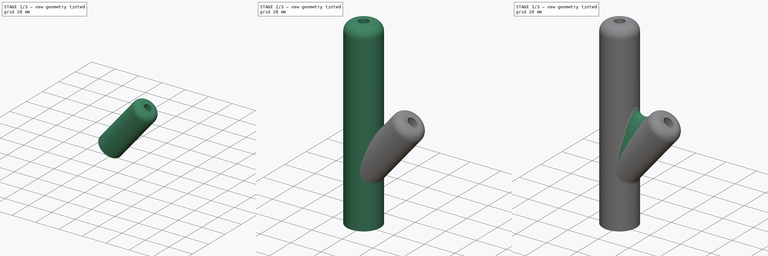
[diagram: build sequence overview — one tinted view per stage of 3, left to right]
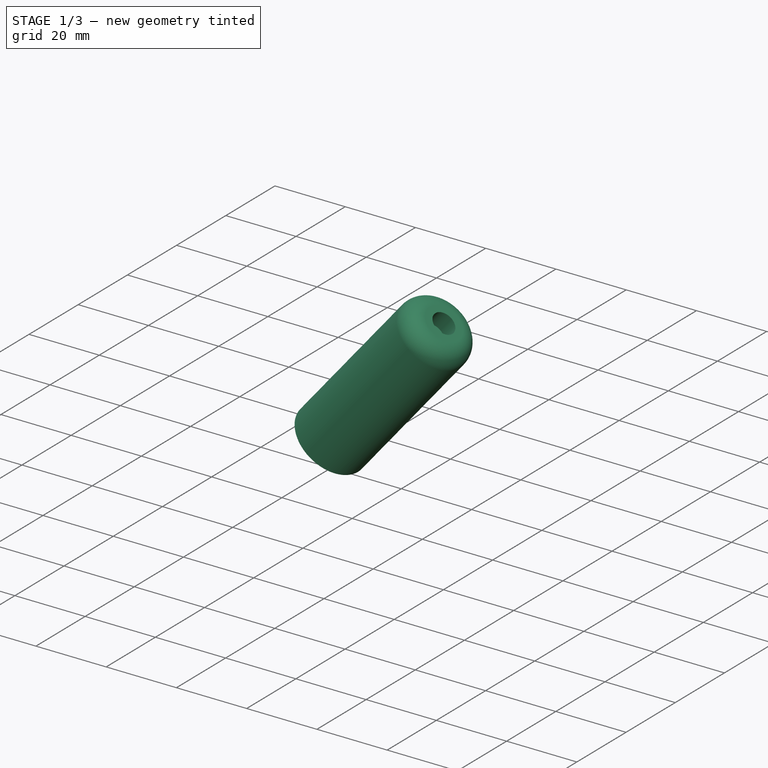
[diagram: stage 1 of 3 — iso view after this stage's code; geometry added in this stage tinted green]
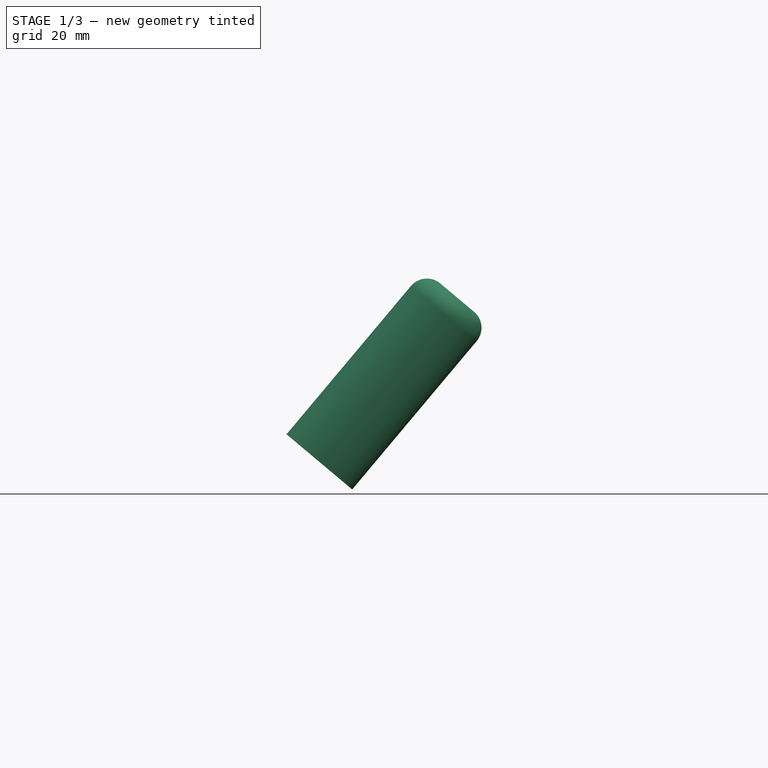
[diagram: stage 1 of 3 — front view after this stage's code; geometry added in this stage tinted green]
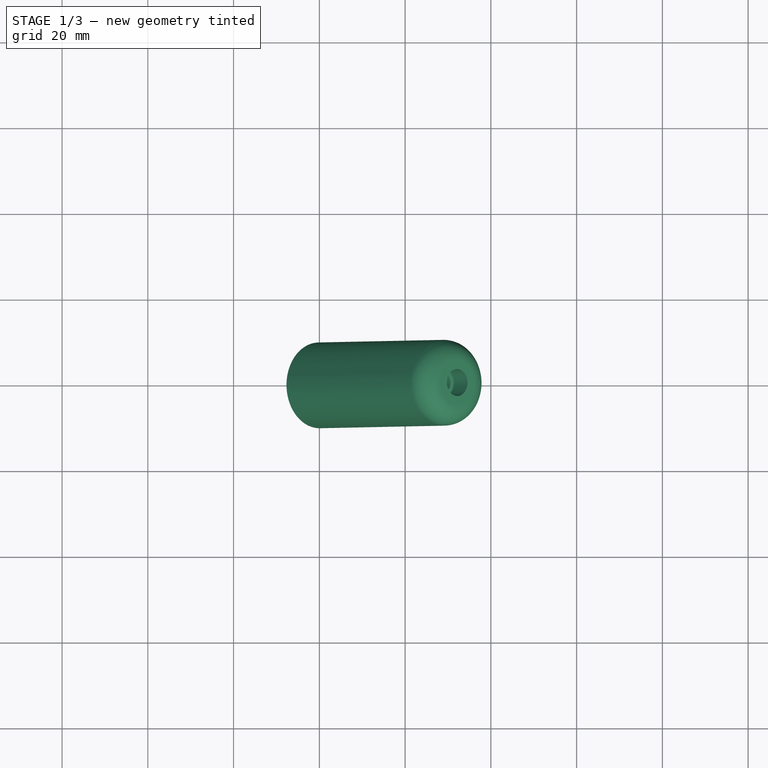
[diagram: stage 1 of 3 — top view after this stage's code; geometry added in this stage tinted green]
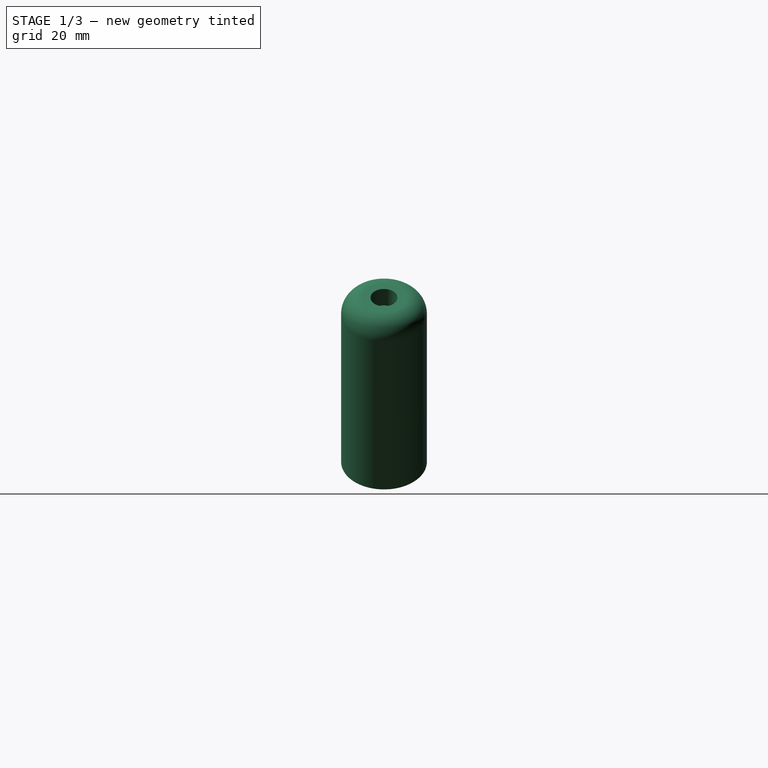
[diagram: stage 1 of 3 — right view after this stage's code; geometry added in this stage tinted green]
FCSTD DOCUMENT  (FreeCAD 0.22R37100 (Git))
Label: gidro-feeder
License: All rights reserved
LicenseURL: http://en.wikipedia.org/wiki/All_rights_reserved
objects: PartDesign::Body×3, Part::FeaturePython×3, Sketcher::SketchObject×2, PartDesign::Revolution×2, PartDesign::FeatureBase×1, PartDesign::Fillet×1
note: 15 computed .brp shape members not serialized (recipe doc carries the construction recipe); baked Part::Feature solids carry a one-line shape summary decoded from their .brp

FEATURE [PartDesign::Body] Body
  Group = -> [Sketch,Revolution]
  Origin = -> Origin
  Tip = -> Revolution
FEATURE [Sketcher::SketchObject] Sketch001
  AttachmentSupport = -> [XZ_Plane001]
  FullyConstrained = true
  MapMode = 5
  Placement = pos=(0,0,0) rot=(1,0,0;1.5708rad)
  sketch-geometry (10):
    g0: LineSegment StartX=3.15 StartY=50 StartZ=0 EndX=3.15 EndY=45 EndZ=0
    g1: LineSegment StartX=3.15 StartY=45 StartZ=0 EndX=2.15 EndY=45 EndZ=0
    g2: LineSegment StartX=2.15 StartY=45 StartZ=0 EndX=2.15 EndY=41 EndZ=0
    g3: LineSegment StartX=7 StartY=32.5996 StartZ=0 EndX=7 EndY=0 EndZ=0
    g4: LineSegment StartX=7 StartY=0 StartZ=0 EndX=10 EndY=0 EndZ=0
    g5: LineSegment StartX=10 StartY=0 StartZ=0 EndX=10 EndY=45.15 EndZ=0
    g6: LineSegment StartX=5.15 StartY=50 StartZ=0 EndX=3.15 EndY=50 EndZ=0
    g7: LineSegment StartX=7 StartY=32.5996 StartZ=0 EndX=2.15 EndY=41 EndZ=0
    g8: ArcOfCircle CenterX=5.15 CenterY=45.15 CenterZ=0 NormalX=0 NormalY=0 NormalZ=1 AngleXU=0 Radius=4.85 StartAngle=4e-16 EndAngle=1.5708
    g9: GeomPoint X=10 Y=50 Z=0
  constraints (28):
    c: Vertical(g0)
    c: Coincident(g0,g1)
    c: Horizontal(g1)
    c: Coincident(g1,g2)
    c: Vertical(g2)
    c: PointOnObject(g3,g-1)
    c: Vertical(g3)
    c: Coincident(g3,g4)
    c: PointOnObject(g4,g-1)
    c: Coincident(g4,g5)
    c: Vertical(g5)
    c: Coincident(g6,g0)
    c: Horizontal(g6)
    c: DistanceX(g0) = 3.15
    c: DistanceX(g1,g1) = 1
    c: DistanceX(g4) = 10
    c: DistanceX(g4,g4) = 3
    c: DistanceY(g2,g2) = 4
    c: DistanceY(g0,g0) = 5
    c: Coincident(g7,g3)
    c: Coincident(g7,g2)
    c: Angle(g7) = 2.0944
    c: DistanceY(g9) = 50
    c: PointOnObject(g9,g5)
    c: PointOnObject(g9,g6)
    c: Tangent(g5,g8) = -1.5708
    c: Tangent(g6,g8) = -1.5708
    c: DistanceX(g6,g6) = 2
FEATURE [PartDesign::Revolution] Revolution001
  Angle = 360
  Angle2 = 60
  Axis = (0,2e-16,1)
  Base = (0,0,0)
  Placement = pos=(0,0,0) rot=(1,0,0;1.5708rad)
  Profile = -> Sketch001
  ReferenceAxis = -> Sketch001 [V_Axis]
  Reversed = true
  Suppressed = false
  Type = 0
FEATURE [PartDesign::Body] Body001
  Group = -> [Sketch001,Revolution001]
  Origin = -> Origin001
  Tip = -> Revolution001
FEATURE [Part::FeaturePython] Placment  # WARN: FeaturePython — macro-defined, semantics opaque (R4)
  AttacherType = Attacher::AttachEngine3D
  ExposePlacement = true
  MarkerShape = 1
  MarkerSize = 10
  NumElements = 1
  Placement = pos=(0,0,30) rot=(0,1,0;0.698132rad)
  Type = lattice2AttachablePlacement.AttachablePlacement
  isLattice = 1
FEATURE [Part::FeaturePython] Populate  label="Populate Placment with Body001"  # WARN: FeaturePython — macro-defined, semantics opaque (R4)
  Copying = 0
  ExposePlacement = false
  MarkerShape = 1
  MarkerSize = 0
  NumElements = 0
  Object = -> Body001
  OutputCompounding = 2
  PlacementsTo = -> Placment
  Referencing = 0
  Type = lattice2PopulateCopies.LatticePopulateCopies
  isLattice = 0
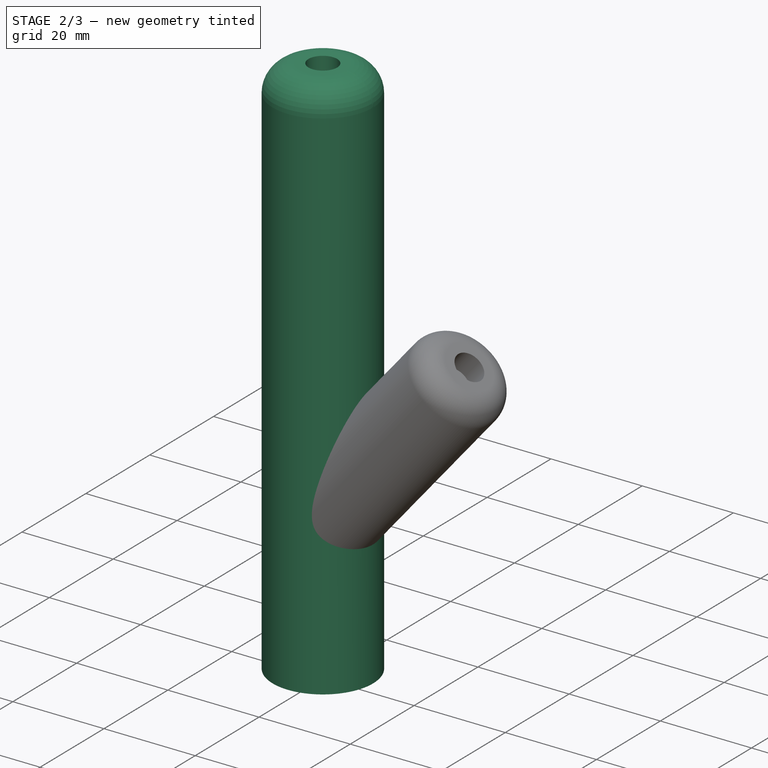
[diagram: stage 2 of 3 — iso view after this stage's code; geometry added in this stage tinted green]
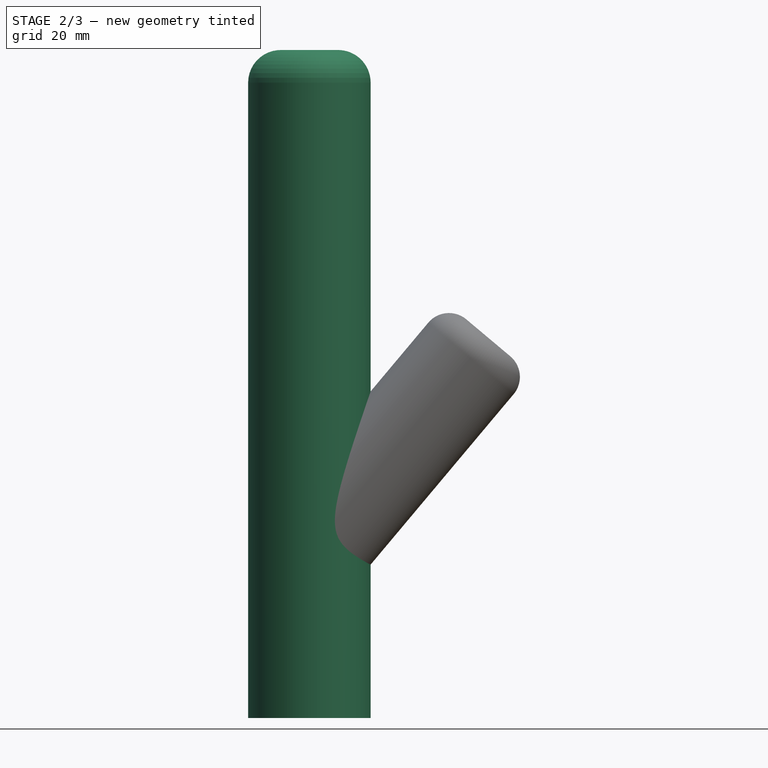
[diagram: stage 2 of 3 — front view after this stage's code; geometry added in this stage tinted green]
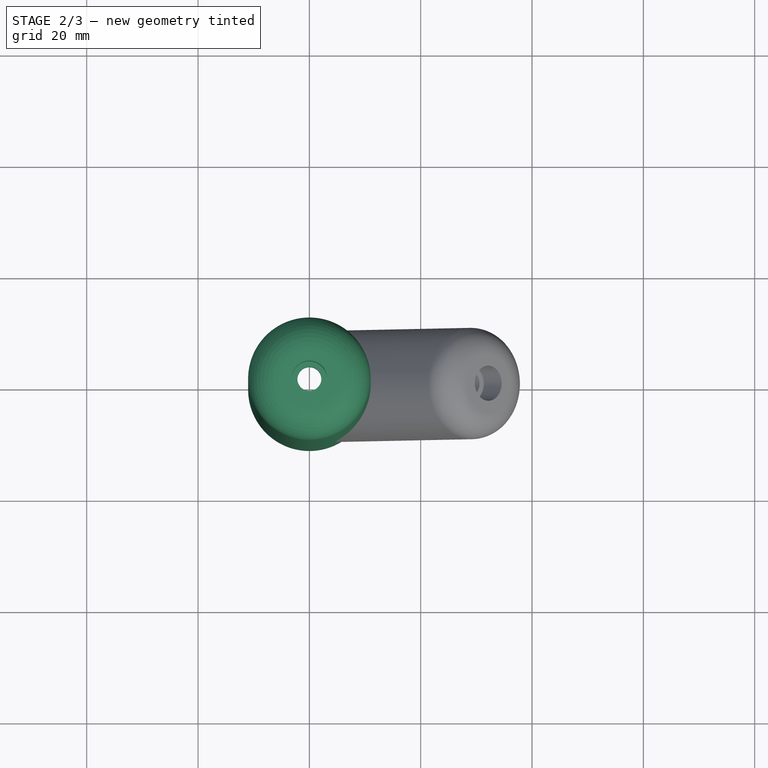
[diagram: stage 2 of 3 — top view after this stage's code; geometry added in this stage tinted green]
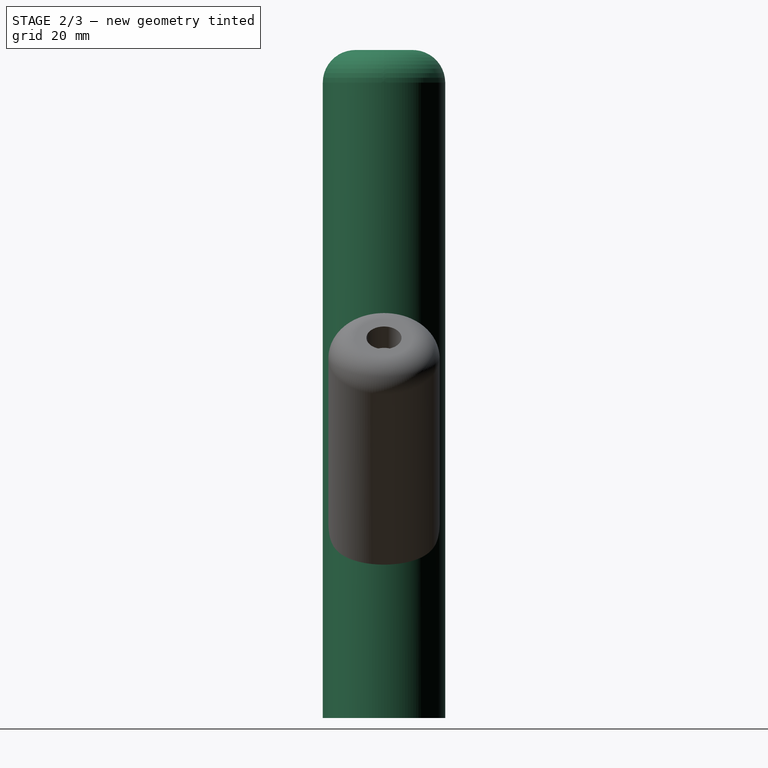
[diagram: stage 2 of 3 — right view after this stage's code; geometry added in this stage tinted green]
FEATURE [Sketcher::SketchObject] Sketch
  AttachmentSupport = -> [XZ_Plane]
  FullyConstrained = true
  MapMode = 5
  Placement = pos=(0,0,0) rot=(1,0,0;1.5708rad)
  sketch-geometry (10):
    g0: LineSegment StartX=8 StartY=0 StartZ=0 EndX=8 EndY=97.8675 EndZ=0
    g1: LineSegment StartX=8 StartY=97.8675 StartZ=0 EndX=2.15 EndY=108 EndZ=0
    g2: LineSegment StartX=2.15 StartY=108 StartZ=0 EndX=2.15 EndY=113 EndZ=0
    g3: LineSegment StartX=2.15 StartY=113 StartZ=0 EndX=3.15 EndY=113 EndZ=0
    g4: LineSegment StartX=3.15 StartY=113 StartZ=0 EndX=3.15 EndY=120 EndZ=0
    g5: LineSegment StartX=3.15 StartY=120 StartZ=0 EndX=5.15 EndY=120 EndZ=0
    g6: LineSegment StartX=11 StartY=114.15 StartZ=0 EndX=11 EndY=0 EndZ=0
    g7: LineSegment StartX=11 StartY=0 StartZ=0 EndX=8 EndY=0 EndZ=0
    g8: ArcOfCircle CenterX=5.15 CenterY=114.15 CenterZ=0 NormalX=0 NormalY=0 NormalZ=1 AngleXU=0 Radius=5.85 StartAngle=1e-15 EndAngle=1.5708
    g9: GeomPoint X=11 Y=120 Z=0
  constraints (28):
    c: PointOnObject(g0,g-1)
    c: Vertical(g0)
    c: Coincident(g0,g1)
    c: Coincident(g1,g2)
    c: Vertical(g2)
    c: Coincident(g2,g3)
    c: Horizontal(g3)
    c: Coincident(g3,g4)
    c: Vertical(g4)
    c: Coincident(g4,g5)
    c: Horizontal(g5)
    c: PointOnObject(g6,g-1)
    c: Vertical(g6)
    c: Coincident(g6,g7)
    c: Coincident(g7,g0)
    c: DistanceX(g3,g3) = 1
    c: DistanceX(g3) = 3.15
    c: DistanceY(g4,g4) = 7
    c: Angle(g1) = 2.0944
    c: DistanceY(g9) = 120
    c: DistanceY(g2,g2) = 5
    c: DistanceX(g6) = 11
    c: DistanceX(g0) = 8
    c: PointOnObject(g9,g5)
    c: PointOnObject(g9,g6)
    c: Tangent(g5,g8) = 1.5708
    c: Tangent(g6,g8) = 1.5708
    c: DistanceX(g5,g5) = 2
FEATURE [PartDesign::Revolution] Revolution
  Angle = 360
  Angle2 = 60
  Axis = (0,2e-16,1)
  Base = (0,0,0)
  Placement = pos=(0,0,0) rot=(1,0,0;1.5708rad)
  Profile = -> Sketch
  ReferenceAxis = -> Sketch [V_Axis]
  Reversed = true
  Suppressed = false
  Type = 0
FEATURE [Part::FeaturePython] Connect  # WARN: FeaturePython — macro-defined, semantics opaque (R4)
  Objects = -> [Body,Populate]
  Refine = true
  Tolerance = 0
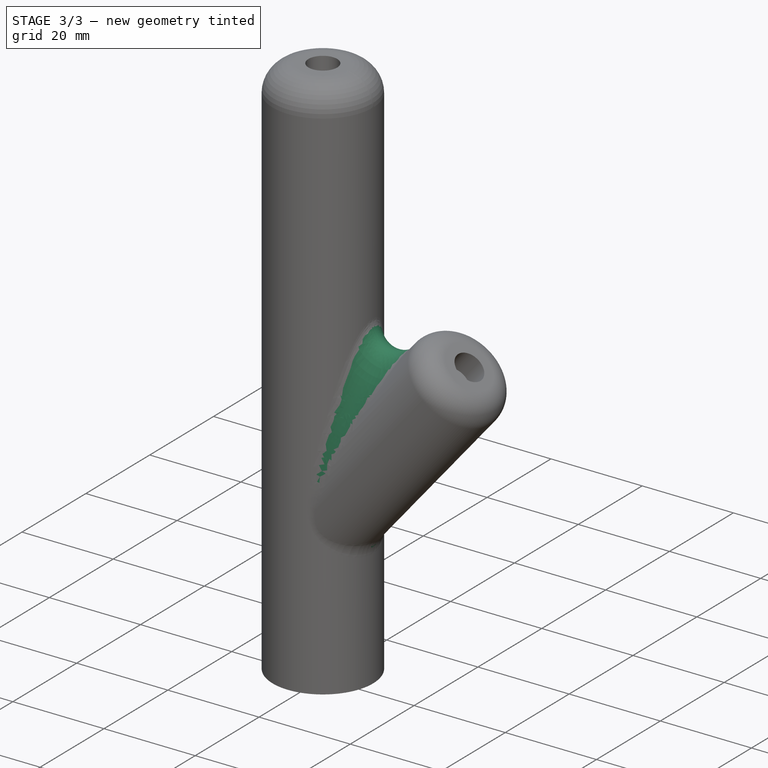
[diagram: stage 3 of 3 — iso view after this stage's code; geometry added in this stage tinted green]
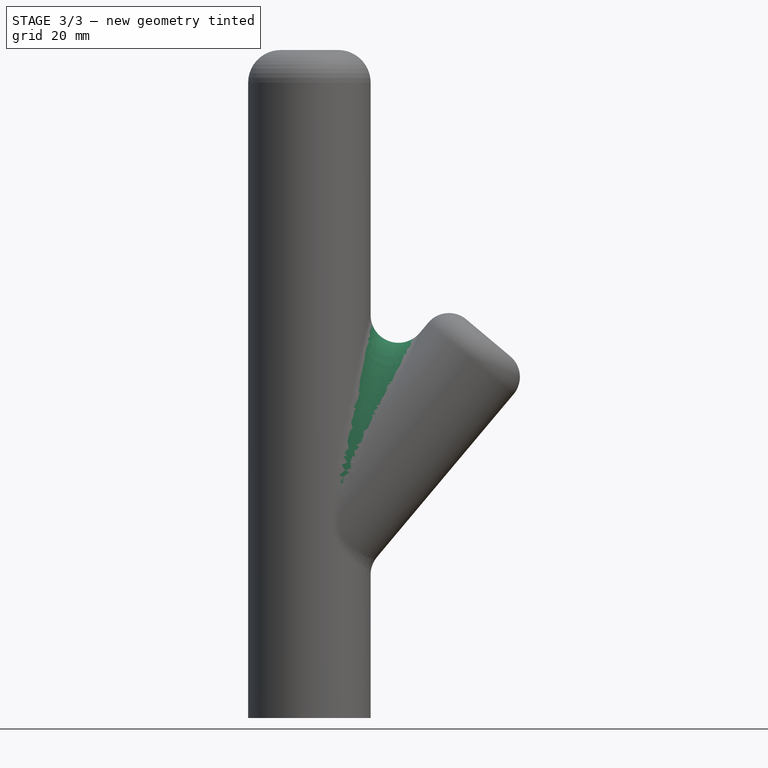
[diagram: stage 3 of 3 — front view after this stage's code; geometry added in this stage tinted green]
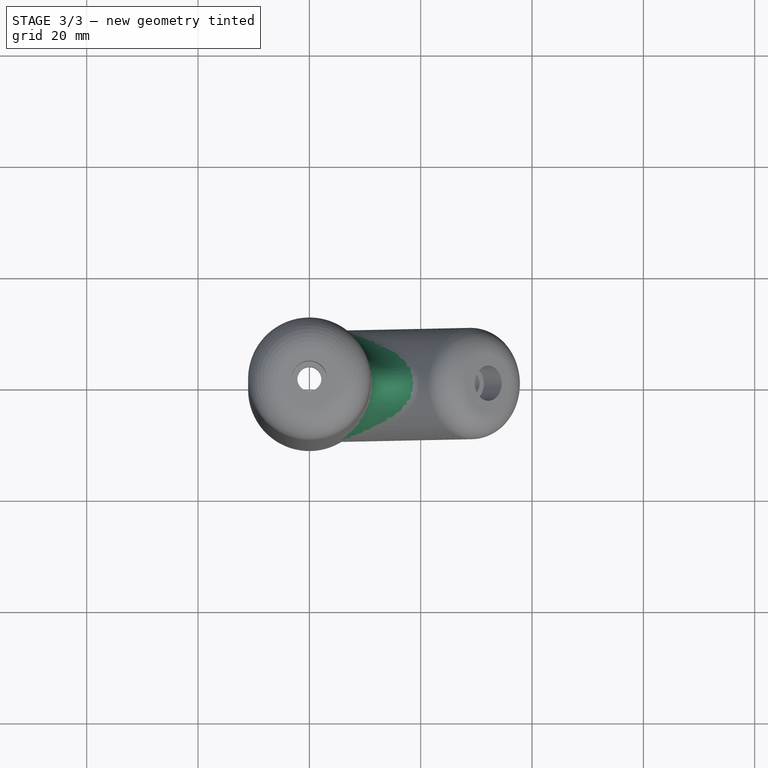
[diagram: stage 3 of 3 — top view after this stage's code; geometry added in this stage tinted green]
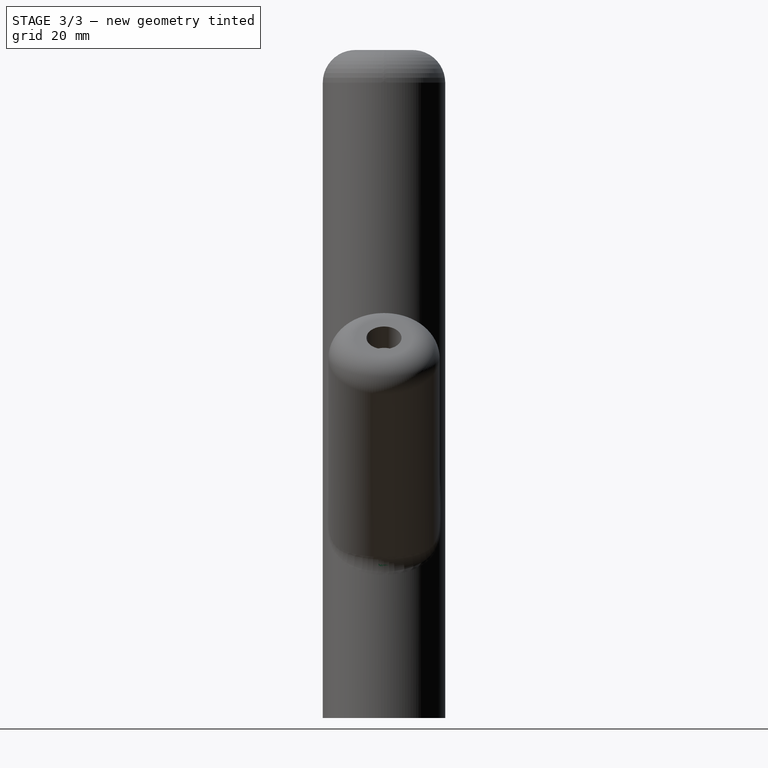
[diagram: stage 3 of 3 — right view after this stage's code; geometry added in this stage tinted green]
FEATURE [PartDesign::FeatureBase] BaseFeature
  BaseFeature = -> Connect
  Suppressed = false
FEATURE [PartDesign::Fillet] Fillet
  Base = -> BaseFeature [Edge2]
  BaseFeature = -> BaseFeature
  Radius = 5
  SupportTransform = false
  Suppressed = false
  UseAllEdges = false
FEATURE [PartDesign::Body] Body002
  BaseFeature = -> Connect
  Group = -> [BaseFeature,Fillet]
  Origin = -> Origin002
  Tip = -> Fillet
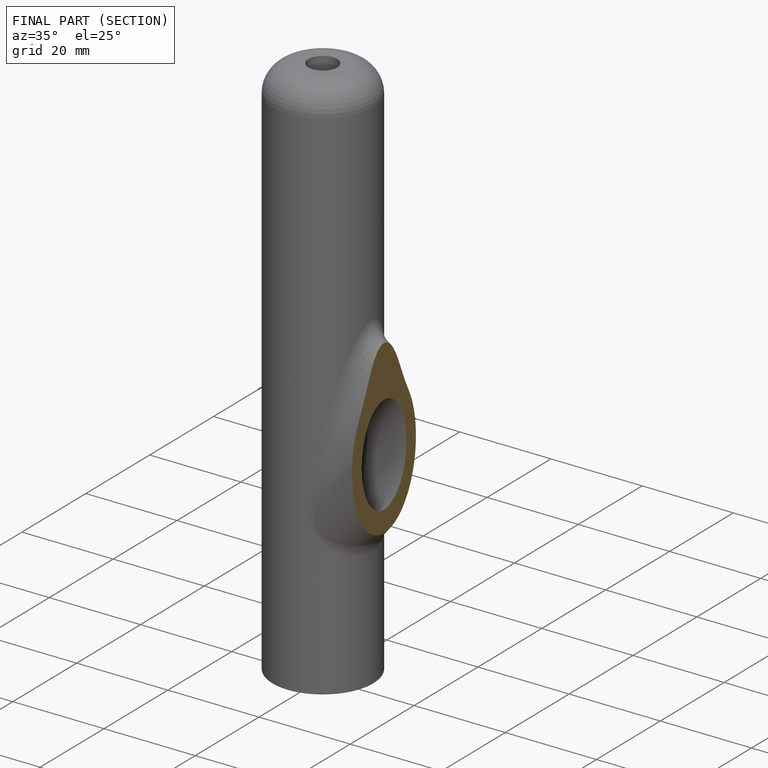
[diagram: finished part — half-section view (interior)]
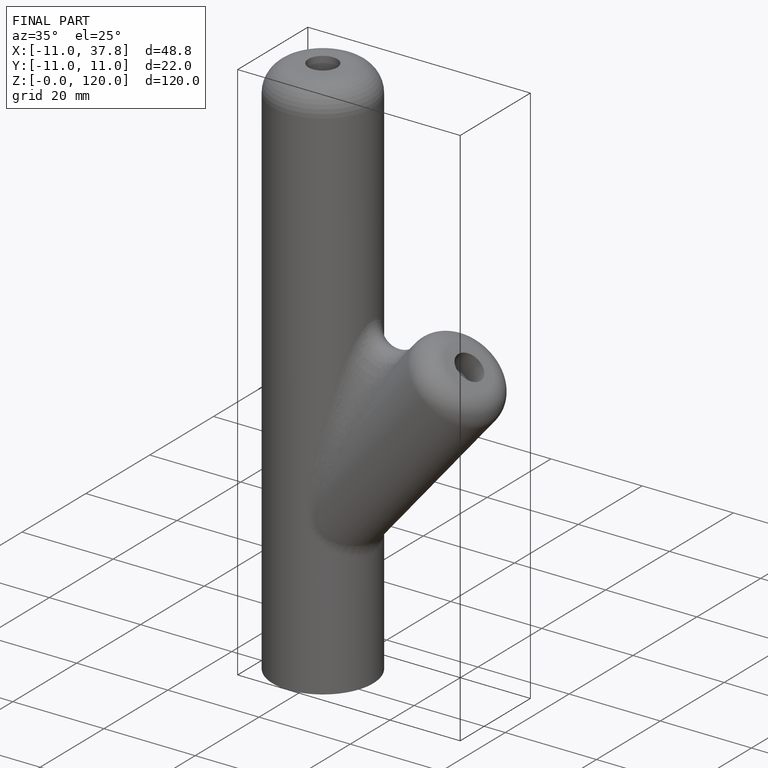
[diagram: finished part — iso view with bounding-box wireframe]
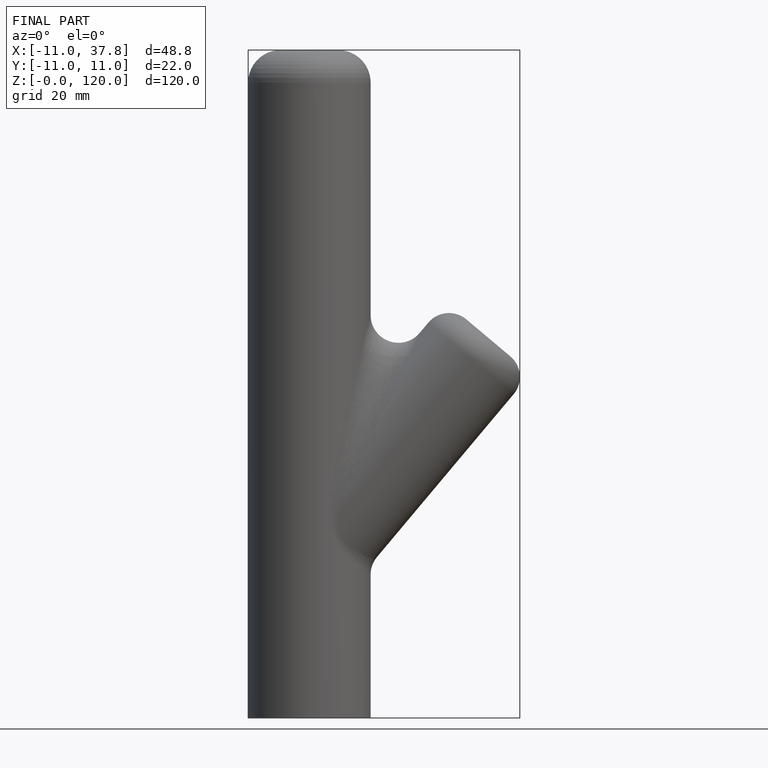
[diagram: finished part — front view with bounding-box wireframe]
